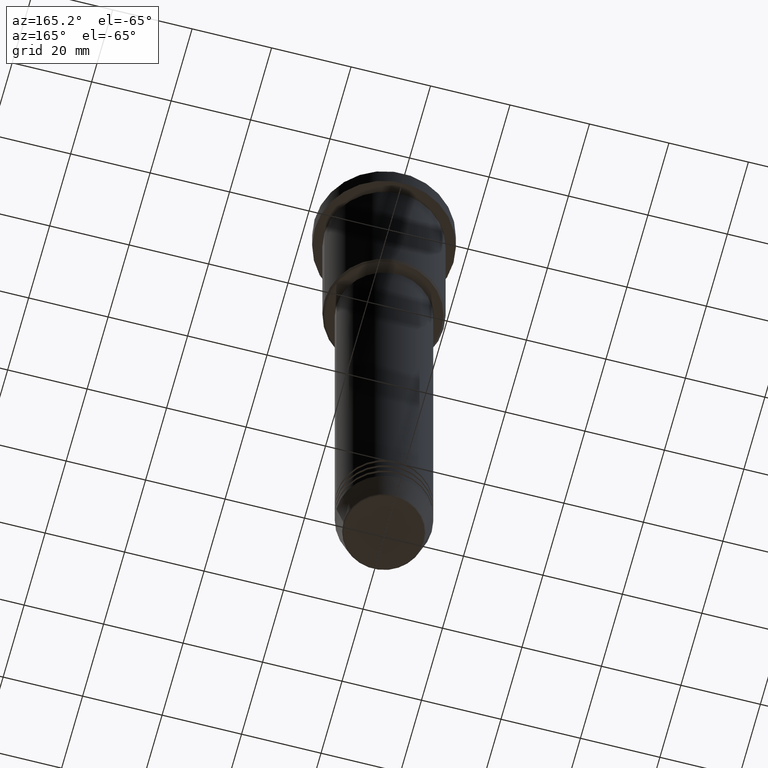
[diagram: clean part render]
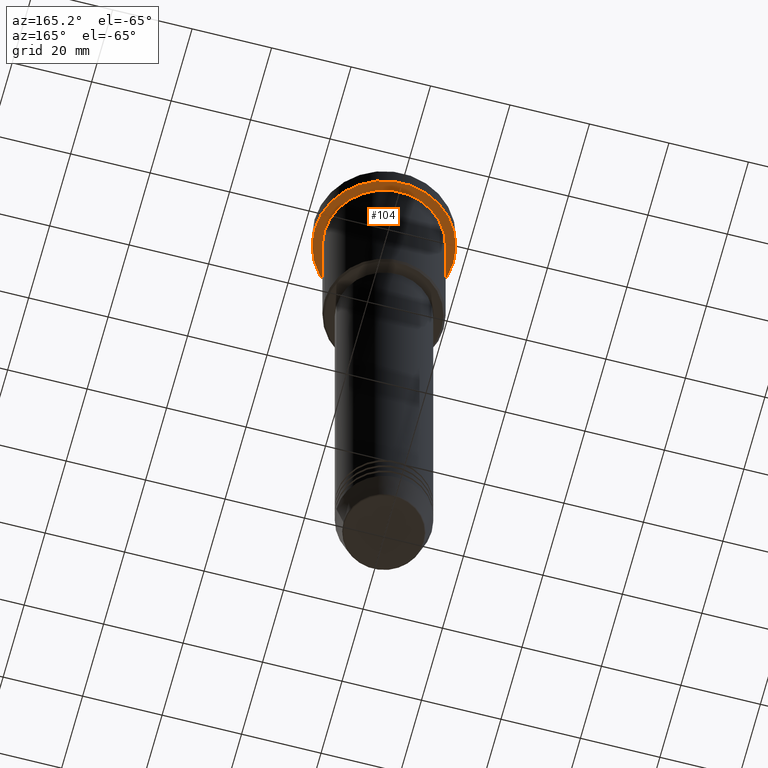
[diagram: same view with one face highlighted and labeled with its STEP entity id]
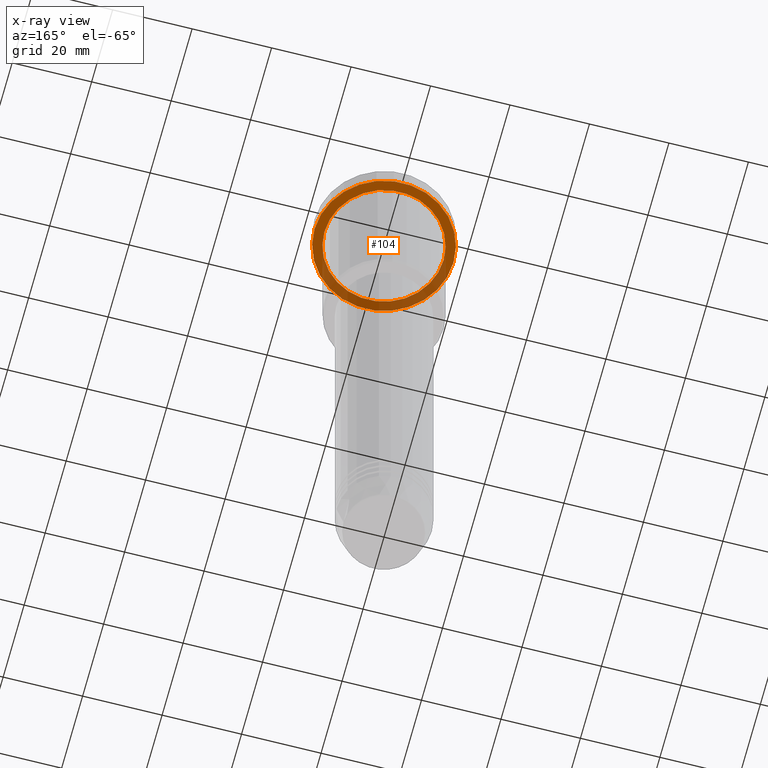
[diagram: x-ray of the same camera — body ghosted, the highlighted face saturated]
A machine part, auxiliary view. The second image highlights one B-rep face of the part: STEP entity #104.
The next image is the same camera in x-ray: the body ghosted, the highlighted face saturated — about 37% of this face is hidden behind the body in this view.
In plain terms, the highlighted planar face has unit normal (0, 0, -1).
Its self-contained STEP definition (entity closure, byte-faithful):
#7 = ORIENTED_EDGE ( 'NONE', *, *, #532, .T. ) ;
#97 = AXIS2_PLACEMENT_3D ( 'NONE', #593, #411, #956 ) ;
#103 = CARTESIAN_POINT ( 'NONE',  ( -15.00000000000000000, 0.000000000000000000, -5.999999999999994671 ) ) ;
#104 = ADVANCED_FACE ( 'NONE', ( #325, #693 ), #673, .T. ) ;
#193 = EDGE_CURVE ( 'NONE', #886, #328, #1156, .T. ) ;
#212 = EDGE_LOOP ( 'NONE', ( #840, #7 ) ) ;
#252 = CARTESIAN_POINT ( 'NONE',  ( 0.000000000000000000, 0.000000000000000000, -5.999999999999995559 ) ) ;
#324 = EDGE_CURVE ( 'NONE', #328, #886, #528, .T. ) ;
#325 = FACE_BOUND ( 'NONE', #212, .T. ) ;
#328 = VERTEX_POINT ( 'NONE', #513 ) ;
#364 = DIRECTION ( 'NONE',  ( -1.000000000000000000, 0.000000000000000000, -0.000000000000000000 ) ) ;
#411 = DIRECTION ( 'NONE',  ( -0.000000000000000000, -0.000000000000000000, 1.000000000000000000 ) ) ;
#456 = DIRECTION ( 'NONE',  ( -0.000000000000000000, -0.000000000000000000, 1.000000000000000000 ) ) ;
#463 = EDGE_LOOP ( 'NONE', ( #957, #540 ) ) ;
#470 = AXIS2_PLACEMENT_3D ( 'NONE', #252, #456, #811 ) ;
#513 = CARTESIAN_POINT ( 'NONE',  ( 17.50000000000000000, 0.000000000000000000, -5.999999999999995559 ) ) ;
#528 = CIRCLE ( 'NONE', #97, 17.50000000000000000 ) ;
#529 = CIRCLE ( 'NONE', #895, 15.00000000000000000 ) ;
#532 = EDGE_CURVE ( 'NONE', #768, #1121, #529, .T. ) ;
#536 = DIRECTION ( 'NONE',  ( -1.000000000000000000, 0.000000000000000000, 0.000000000000000000 ) ) ;
#540 = ORIENTED_EDGE ( 'NONE', *, *, #193, .F. ) ;
#564 = CARTESIAN_POINT ( 'NONE',  ( 15.00000000000000000, 1.836970198721029589E-15, -5.999999999999994671 ) ) ;
#593 = CARTESIAN_POINT ( 'NONE',  ( 0.000000000000000000, 0.000000000000000000, -5.999999999999995559 ) ) ;
#621 = DIRECTION ( 'NONE',  ( -0.000000000000000000, -0.000000000000000000, 1.000000000000000000 ) ) ;
#666 = DIRECTION ( 'NONE',  ( 1.000000000000000000, 0.000000000000000000, 0.000000000000000000 ) ) ;
#673 = PLANE ( 'NONE',  #850 ) ;
#693 = FACE_OUTER_BOUND ( 'NONE', #463, .T. ) ;
#755 = DIRECTION ( 'NONE',  ( 0.000000000000000000, 0.000000000000000000, -1.000000000000000000 ) ) ;
#768 = VERTEX_POINT ( 'NONE', #564 ) ;
#790 = CARTESIAN_POINT ( 'NONE',  ( -17.50000000000000000, 2.143131898507868248E-15, -5.999999999999995559 ) ) ;
#811 = DIRECTION ( 'NONE',  ( -1.000000000000000000, 0.000000000000000000, 0.000000000000000000 ) ) ;
#840 = ORIENTED_EDGE ( 'NONE', *, *, #1022, .T. ) ;
#850 = AXIS2_PLACEMENT_3D ( 'NONE', #1010, #755, #364 ) ;
#851 = AXIS2_PLACEMENT_3D ( 'NONE', #1104, #934, #666 ) ;
#886 = VERTEX_POINT ( 'NONE', #790 ) ;
#895 = AXIS2_PLACEMENT_3D ( 'NONE', #1082, #621, #536 ) ;
#934 = DIRECTION ( 'NONE',  ( -0.000000000000000000, -0.000000000000000000, 1.000000000000000000 ) ) ;
#956 = DIRECTION ( 'NONE',  ( 1.000000000000000000, 0.000000000000000000, 0.000000000000000000 ) ) ;
#957 = ORIENTED_EDGE ( 'NONE', *, *, #324, .F. ) ;
#993 = CIRCLE ( 'NONE', #470, 15.00000000000000000 ) ;
#1010 = CARTESIAN_POINT ( 'NONE',  ( 0.000000000000000000, 17.50000000000000000, -5.999999999999995559 ) ) ;
#1022 = EDGE_CURVE ( 'NONE', #1121, #768, #993, .T. ) ;
#1082 = CARTESIAN_POINT ( 'NONE',  ( 0.000000000000000000, 0.000000000000000000, -5.999999999999995559 ) ) ;
#1104 = CARTESIAN_POINT ( 'NONE',  ( 0.000000000000000000, 0.000000000000000000, -5.999999999999995559 ) ) ;
#1121 = VERTEX_POINT ( 'NONE', #103 ) ;
#1156 = CIRCLE ( 'NONE', #851, 17.50000000000000000 ) ;